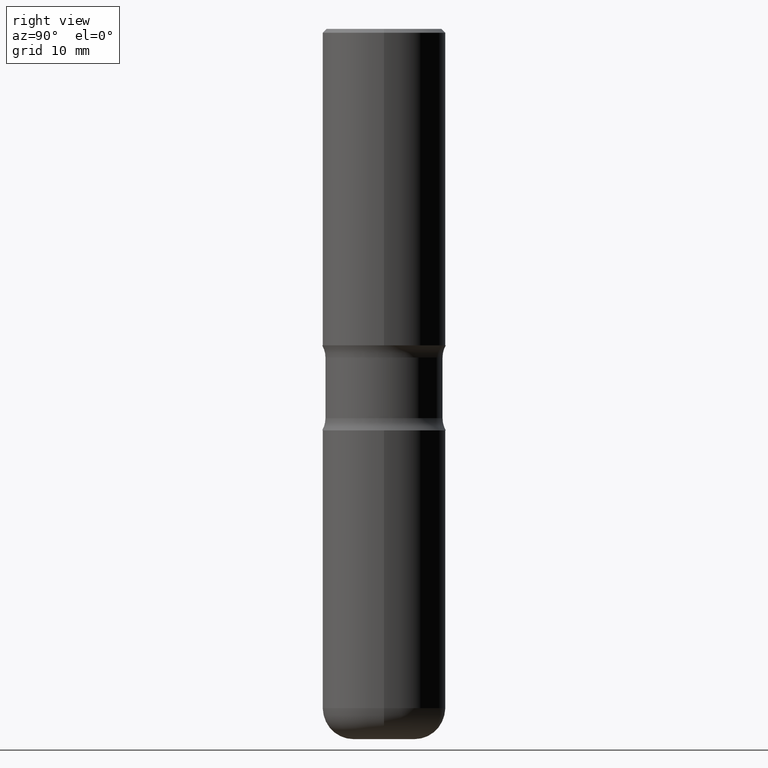
[diagram: clean part render]
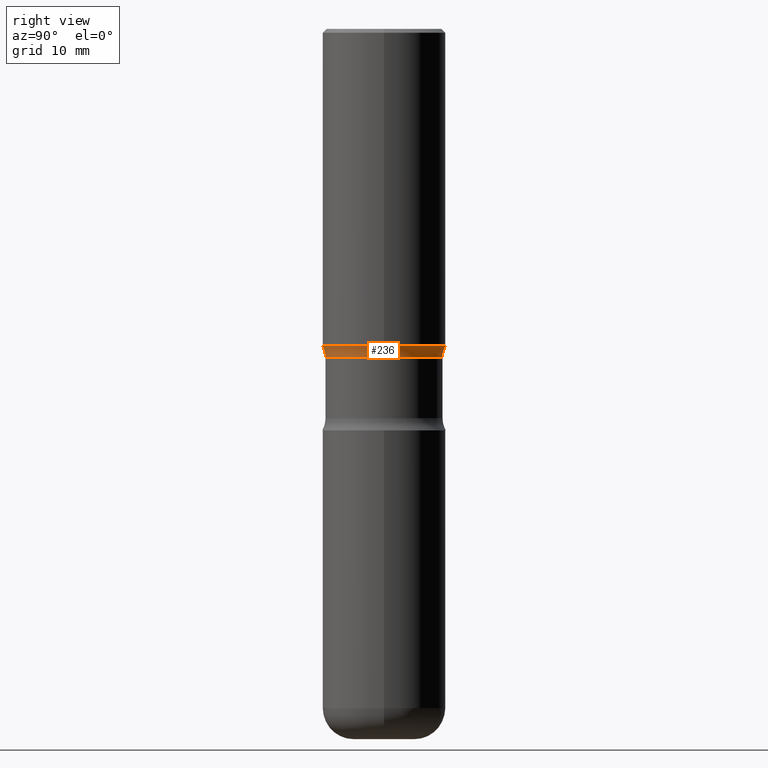
[diagram: same view with one face highlighted and labeled with its STEP entity id]
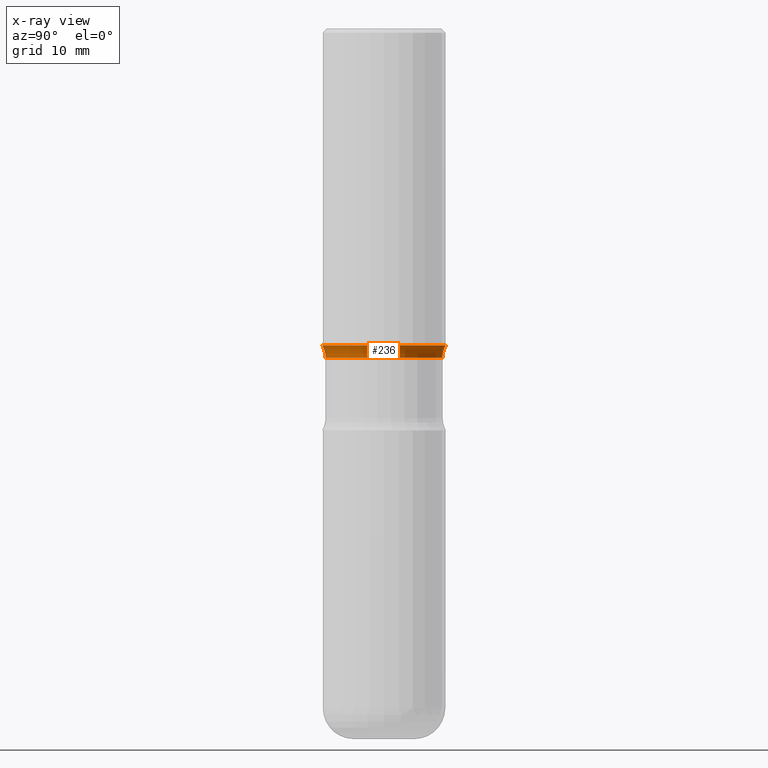
[diagram: x-ray of the same camera — body ghosted, the highlighted face saturated]
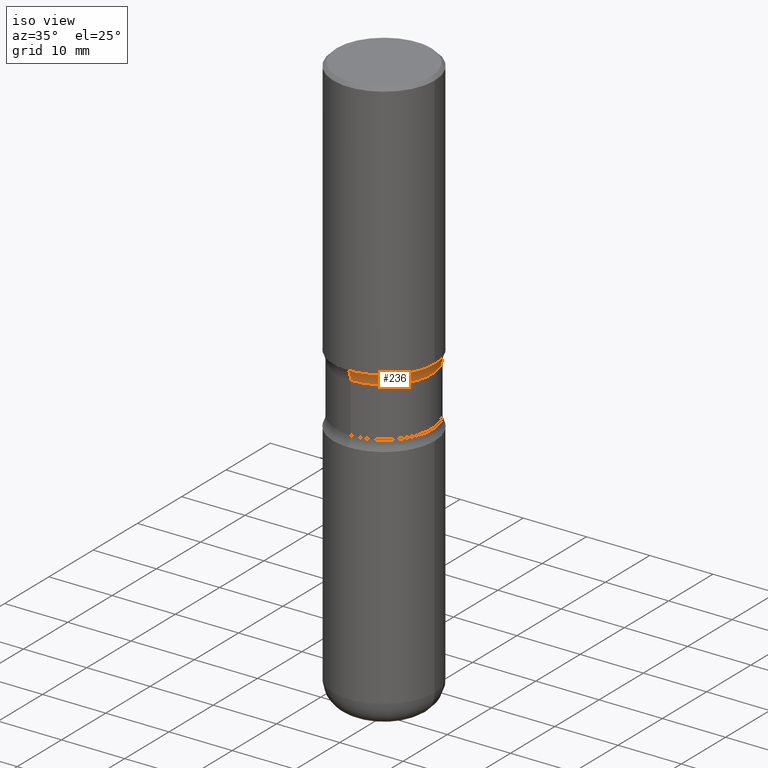
[diagram: same view with one face highlighted and labeled with its STEP entity id]
A machine part, right view. The second image highlights one B-rep face of the part: STEP entity #236.
The next image is the same camera in x-ray: the body ghosted, the highlighted face saturated — about 0% of this face is hidden behind the body in this view.
A second angle (iso view) of the same face is appended — the face is thin or edge-on in the first view.
In plain terms, the highlighted toroidal blend (fillet) surface has major radius 10.7569 mm and minor (blend) radius 3.175 mm.
Its self-contained STEP definition (entity closure, byte-faithful):
#2 = CARTESIAN_POINT ( 'NONE',  ( -2.104286248366432366E-15, -0.2985000000000057052, -1.676083042035704018 ) ) ;
#10 = EDGE_CURVE ( 'NONE', #485, #164, #238, .T. ) ;
#19 = VERTEX_POINT ( 'NONE', #158 ) ;
#25 = ORIENTED_EDGE ( 'NONE', *, *, #10, .T. ) ;
#28 = DIRECTION ( 'NONE',  ( 1.000000000000000000, -6.860497997771530774E-15, 4.840549151551353916E-29 ) ) ;
#31 = CARTESIAN_POINT ( 'NONE',  ( -2.905420902056200286E-15, -0.4235000000000055387, -1.676083042035703574 ) ) ;
#36 = AXIS2_PLACEMENT_3D ( 'NONE', #134, #219, #392 ) ;
#54 = CARTESIAN_POINT ( 'NONE',  ( 2.199284095337330103E-15, 0.3149499999999945676, -1.614100000000000312 ) ) ;
#55 = CARTESIAN_POINT ( 'NONE',  ( 3.953398348740424918E-29, -5.626768321108955444E-15, -1.614099999999999424 ) ) ;
#107 = ORIENTED_EDGE ( 'NONE', *, *, #300, .F. ) ;
#133 = CARTESIAN_POINT ( 'NONE',  ( 2.084414359289390435E-15, 0.2984999999999940479, -1.676083042035706239 ) ) ;
#134 = CARTESIAN_POINT ( 'NONE',  ( 4.146499777326381489E-29, -5.783716463777509239E-15, -1.676083042035705128 ) ) ;
#150 = VERTEX_POINT ( 'NONE', #2 ) ;
#158 = CARTESIAN_POINT ( 'NONE',  ( -2.160713844398105103E-15, -0.3149500000000057254, -1.614099999999998314 ) ) ;
#164 = VERTEX_POINT ( 'NONE', #54 ) ;
#170 = AXIS2_PLACEMENT_3D ( 'NONE', #199, #316, #231 ) ;
#178 = CIRCLE ( 'NONE', #377, 0.3149500000000001743 ) ;
#193 = DIRECTION ( 'NONE',  ( 6.860497997771531562E-15, 1.000000000000000000, 0.000000000000000000 ) ) ;
#199 = CARTESIAN_POINT ( 'NONE',  ( 4.104093333986238710E-29, -5.844444904265456773E-15, -1.676083042035705128 ) ) ;
#219 = DIRECTION ( 'NONE',  ( 2.431229257173367832E-29, -3.511873183492796268E-15, -1.000000000000000000 ) ) ;
#231 = DIRECTION ( 'NONE',  ( 6.982962677686265922E-15, 1.000000000000000000, -3.660767830705881533E-15 ) ) ;
#236 = ADVANCED_FACE ( 'NONE', ( #439 ), #538, .F. ) ;
#238 = CIRCLE ( 'NONE', #328, 0.1249999999999999029 ) ;
#257 = CIRCLE ( 'NONE', #170, 0.2984999999999998765 ) ;
#258 = DIRECTION ( 'NONE',  ( 2.431229257173367832E-29, -3.511873183492796268E-15, -1.000000000000000000 ) ) ;
#300 = EDGE_CURVE ( 'NONE', #150, #19, #346, .T. ) ;
#316 = DIRECTION ( 'NONE',  ( 2.431229257173367832E-29, -3.511873183492796268E-15, -1.000000000000000000 ) ) ;
#328 = AXIS2_PLACEMENT_3D ( 'NONE', #445, #497, #356 ) ;
#333 = EDGE_CURVE ( 'NONE', #485, #150, #257, .T. ) ;
#344 = EDGE_LOOP ( 'NONE', ( #107, #483, #25, #361 ) ) ;
#346 = CIRCLE ( 'NONE', #461, 0.1249999999999999029 ) ;
#356 = DIRECTION ( 'NONE',  ( -6.982962677686264344E-15, -1.000000000000000000, 0.000000000000000000 ) ) ;
#361 = ORIENTED_EDGE ( 'NONE', *, *, #486, .T. ) ;
#377 = AXIS2_PLACEMENT_3D ( 'NONE', #55, #258, #387 ) ;
#387 = DIRECTION ( 'NONE',  ( 6.982962677686264344E-15, 1.000000000000000000, -3.469564049740291192E-15 ) ) ;
#392 = DIRECTION ( 'NONE',  ( 6.982962677686265922E-15, 1.000000000000000000, -3.511873183492796268E-15 ) ) ;
#439 = FACE_OUTER_BOUND ( 'NONE', #344, .T. ) ;
#445 = CARTESIAN_POINT ( 'NONE',  ( 2.957284694000172985E-15, 0.4234999999999939369, -1.676083042035706461 ) ) ;
#461 = AXIS2_PLACEMENT_3D ( 'NONE', #31, #28, #193 ) ;
#483 = ORIENTED_EDGE ( 'NONE', *, *, #333, .F. ) ;
#485 = VERTEX_POINT ( 'NONE', #133 ) ;
#486 = EDGE_CURVE ( 'NONE', #164, #19, #178, .T. ) ;
#497 = DIRECTION ( 'NONE',  ( -1.000000000000000000, 6.982962677686265922E-15, -4.883557194083112340E-29 ) ) ;
#538 = TOROIDAL_SURFACE ( 'NONE', #36, 0.4234999999999997100, 0.1249999999999999029 ) ;